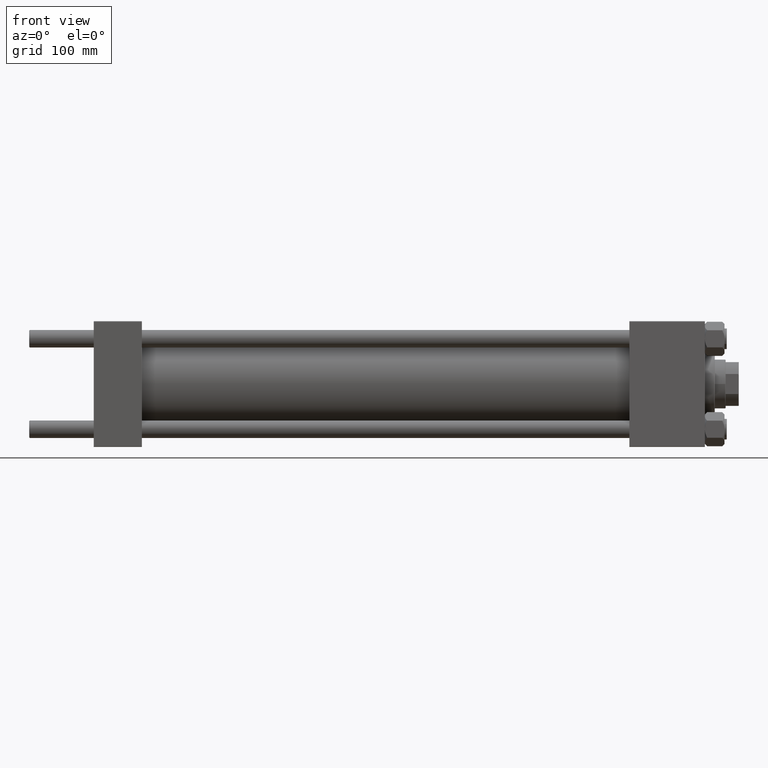
[diagram: clean part render]
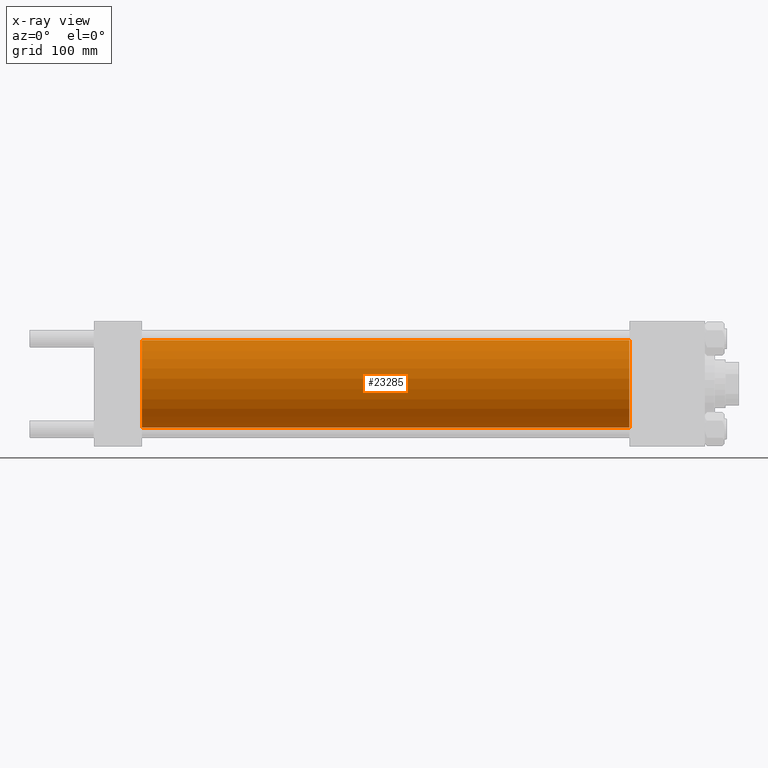
[diagram: x-ray — body ghosted, one internal face saturated and labeled with its STEP entity id]
A machine part, front view, then the same camera in x-ray: the body is ghosted and one INTERNAL B-rep face — a face not visible from any outside direction — is saturated and labeled: STEP entity #23285.
In plain terms, the highlighted cylindrical surface (partial cylindrical patch) has radius 40 mm, axis along (-1, -0, -0).
Its self-contained STEP definition (entity closure, byte-faithful):
#2195 = EDGE_LOOP ( 'NONE', ( #14952, #13163, #37244, #6792 ) ) ;
#6792 = ORIENTED_EDGE ( 'NONE', *, *, #9130, .F. ) ;
#7449 = DIRECTION ( 'NONE',  ( -1.000000000000000000, -0.000000000000000000, -0.000000000000000000 ) ) ;
#9130 = EDGE_CURVE ( 'NONE', #37282, #15529, #48774, .T. ) ;
#11766 = FACE_OUTER_BOUND ( 'NONE', #2195, .T. ) ;
#12213 = CARTESIAN_POINT ( 'NONE',  ( 490.0000000000000000, 0.000000000000000000, 40.00000000000000000 ) ) ;
#13163 = ORIENTED_EDGE ( 'NONE', *, *, #28960, .T. ) ;
#14140 = VERTEX_POINT ( 'NONE', #32550 ) ;
#14952 = ORIENTED_EDGE ( 'NONE', *, *, #49186, .T. ) ;
#15529 = VERTEX_POINT ( 'NONE', #43166 ) ;
#19113 = CYLINDRICAL_SURFACE ( 'NONE', #34767, 40.00000000000000000 ) ;
#21083 = CARTESIAN_POINT ( 'NONE',  ( 44.00000000000000000, 4.898587196589412237E-15, -40.00000000000000000 ) ) ;
#22289 = CIRCLE ( 'NONE', #41753, 40.00000000000000000 ) ;
#23285 = ADVANCED_FACE ( 'NONE', ( #11766 ), #19113, .F. ) ;
#23573 = CIRCLE ( 'NONE', #34902, 40.00000000000000000 ) ;
#25104 = VECTOR ( 'NONE', #40640, 1000.000000000000000 ) ;
#26079 = DIRECTION ( 'NONE',  ( 0.000000000000000000, 0.000000000000000000, -1.000000000000000000 ) ) ;
#26748 = CARTESIAN_POINT ( 'NONE',  ( 490.0000000000000000, 0.000000000000000000, 0.000000000000000000 ) ) ;
#28960 = EDGE_CURVE ( 'NONE', #14140, #50067, #31106, .T. ) ;
#29219 = CARTESIAN_POINT ( 'NONE',  ( 490.0000000000000000, 0.000000000000000000, 40.00000000000000000 ) ) ;
#29878 = DIRECTION ( 'NONE',  ( 1.000000000000000000, 0.000000000000000000, 0.000000000000000000 ) ) ;
#31106 = LINE ( 'NONE', #41544, #46963 ) ;
#32001 = CARTESIAN_POINT ( 'NONE',  ( 490.0000000000000000, 0.000000000000000000, 0.000000000000000000 ) ) ;
#32550 = CARTESIAN_POINT ( 'NONE',  ( 490.0000000000000000, 4.898587196589412237E-15, -40.00000000000000000 ) ) ;
#34407 = DIRECTION ( 'NONE',  ( -1.000000000000000000, -0.000000000000000000, -0.000000000000000000 ) ) ;
#34767 = AXIS2_PLACEMENT_3D ( 'NONE', #26748, #7449, #46287 ) ;
#34902 = AXIS2_PLACEMENT_3D ( 'NONE', #32001, #36308, #39866 ) ;
#36308 = DIRECTION ( 'NONE',  ( 1.000000000000000000, 0.000000000000000000, 0.000000000000000000 ) ) ;
#37244 = ORIENTED_EDGE ( 'NONE', *, *, #43914, .F. ) ;
#37282 = VERTEX_POINT ( 'NONE', #12213 ) ;
#39866 = DIRECTION ( 'NONE',  ( 0.000000000000000000, 0.000000000000000000, -1.000000000000000000 ) ) ;
#40640 = DIRECTION ( 'NONE',  ( -1.000000000000000000, -0.000000000000000000, -0.000000000000000000 ) ) ;
#41544 = CARTESIAN_POINT ( 'NONE',  ( 490.0000000000000000, 4.898587196589412237E-15, -40.00000000000000000 ) ) ;
#41753 = AXIS2_PLACEMENT_3D ( 'NONE', #49170, #29878, #26079 ) ;
#43166 = CARTESIAN_POINT ( 'NONE',  ( 44.00000000000000000, 0.000000000000000000, 40.00000000000000000 ) ) ;
#43914 = EDGE_CURVE ( 'NONE', #15529, #50067, #22289, .T. ) ;
#46287 = DIRECTION ( 'NONE',  ( 0.000000000000000000, 0.000000000000000000, 1.000000000000000000 ) ) ;
#46963 = VECTOR ( 'NONE', #34407, 1000.000000000000000 ) ;
#48774 = LINE ( 'NONE', #29219, #25104 ) ;
#49170 = CARTESIAN_POINT ( 'NONE',  ( 44.00000000000000000, 0.000000000000000000, 0.000000000000000000 ) ) ;
#49186 = EDGE_CURVE ( 'NONE', #37282, #14140, #23573, .T. ) ;
#50067 = VERTEX_POINT ( 'NONE', #21083 ) ;